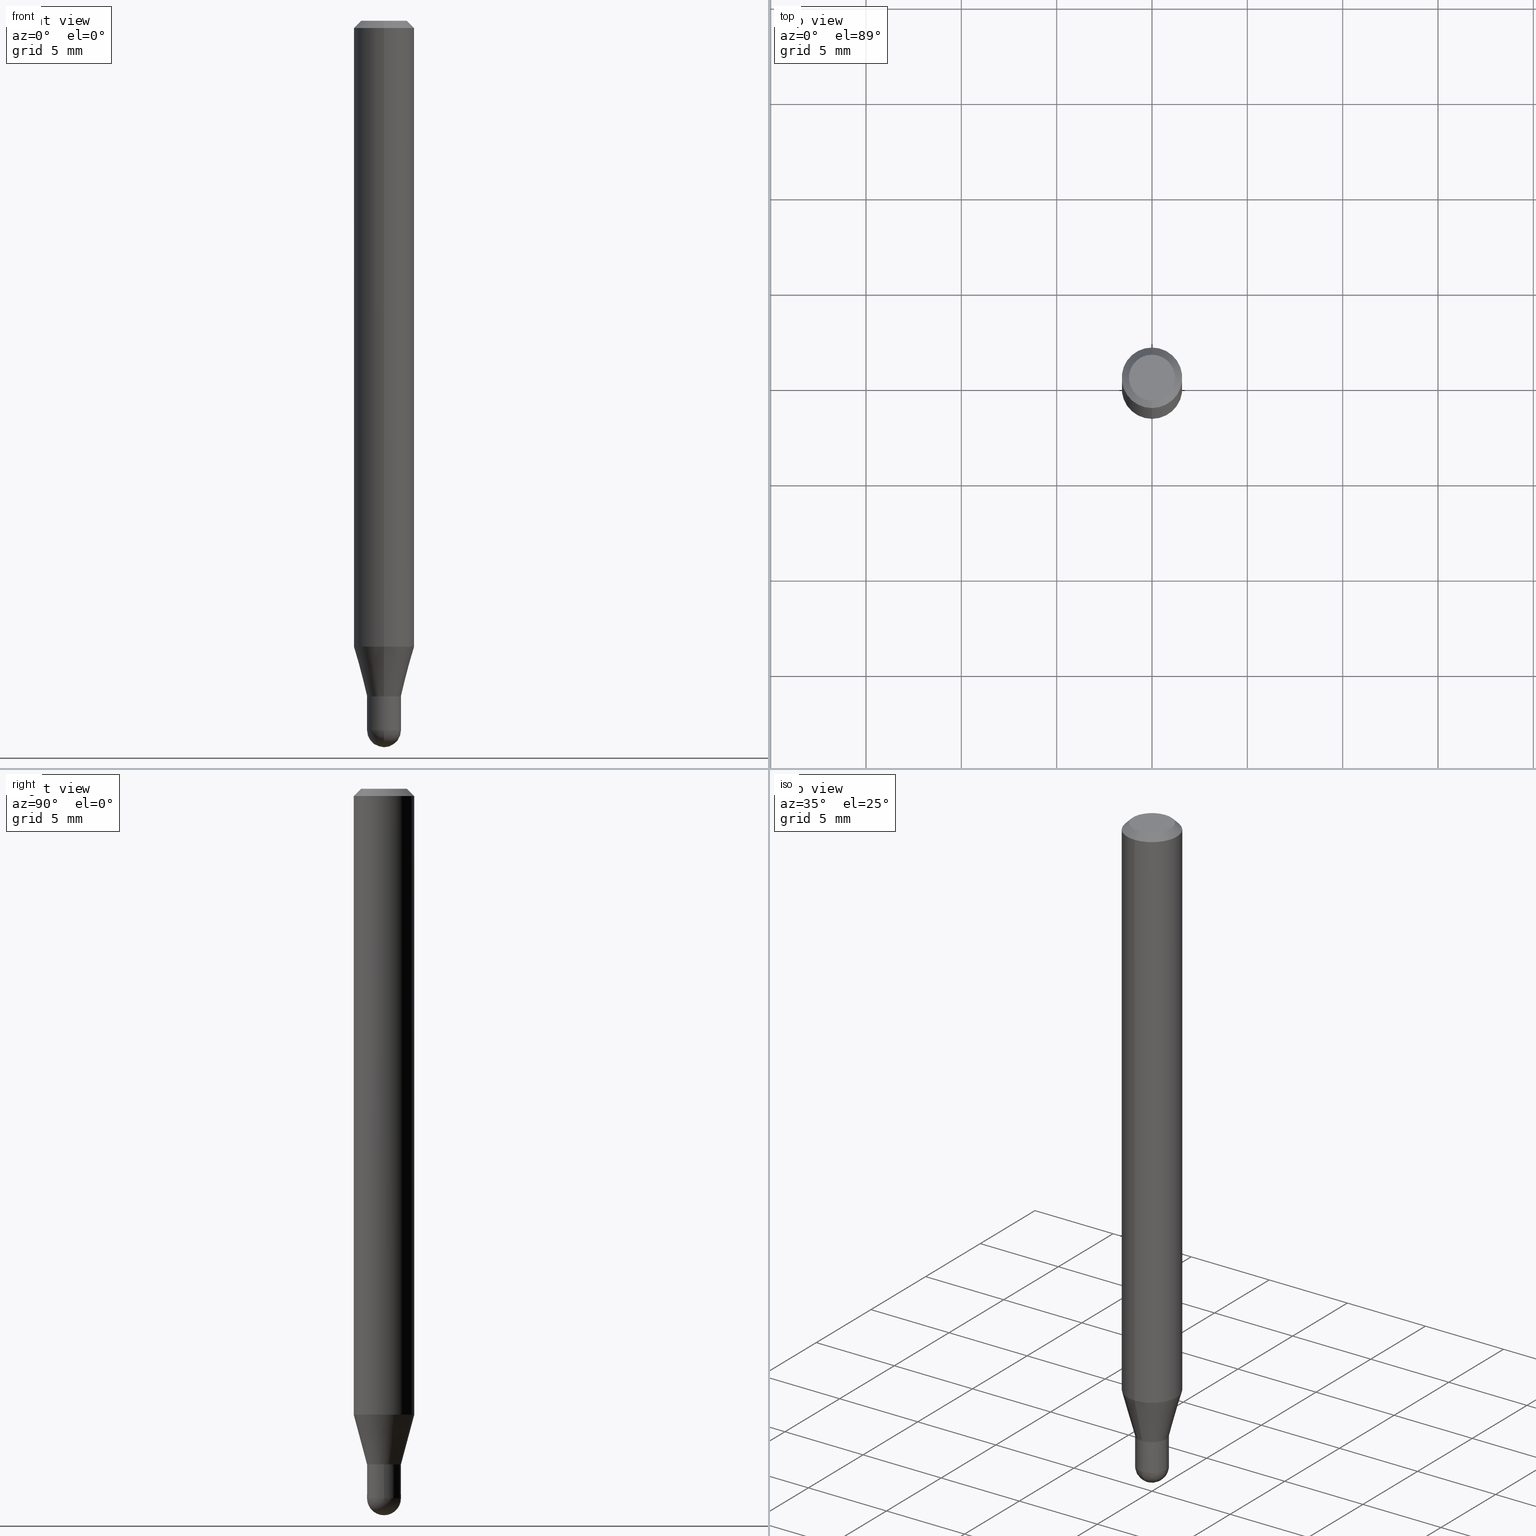
[diagram: canonical four-view strip — front | top / right | iso, engineering-drawing reading convention]
A machine part, canonical four-view strip (front | top / right | iso — engineering-drawing reading convention). The complete STEP part file that produces these views, byte-faithful:
ISO-10303-21;
HEADER;
FILE_DESCRIPTION (( 'STEP AP203' ),
    '1' );
FILE_NAME ('01420.STEP',
    '2024-03-07T20:38:20',
    ( '' ),
    ( '' ),
    'SwSTEP 2.0',
    'SolidWorks 2023',
    '' );
FILE_SCHEMA (( 'CONFIG_CONTROL_DESIGN' ));
ENDSEC;

DATA;
#1 = CIRCLE ( 'NONE', #357, 0.03499999999999992700 ) ;
#2 = VECTOR ( 'NONE', #176, 39.37007874015748143 ) ;
#3 = APPROVAL_DATE_TIME ( #406, #511 ) ;
#4 = CALENDAR_DATE ( 2024, 7, 3 ) ;
#5 = ORIENTED_EDGE ( 'NONE', *, *, #366, .F. ) ;
#6 = DIRECTION ( 'NONE',  ( -6.982962677686265922E-15, -1.000000000000000000, 0.000000000000000000 ) ) ;
#7 = DIRECTION ( 'NONE',  ( -6.982962677686265922E-15, -1.000000000000000000, 3.491503968680831010E-15 ) ) ;
#8 = PERSON_AND_ORGANIZATION ( #168, #453 ) ;
#9 = CC_DESIGN_PERSON_AND_ORGANIZATION_ASSIGNMENT ( #90, #83, ( #301 ) ) ;
#10 = APPROVAL_PERSON_ORGANIZATION ( #356, #50, #447 ) ;
#11 = EDGE_CURVE ( 'NONE', #457, #466, #471, .T. ) ;
#12 = DIRECTION ( 'NONE',  ( 4.937700262164548042E-15, 0.7071067811865451302, -0.7071067811865499042 ) ) ;
#13 = EDGE_CURVE ( 'NONE', #218, #249, #348, .T. ) ;
#14 = ORIENTED_EDGE ( 'NONE', *, *, #11, .F. ) ;
#15 = DIRECTION ( 'NONE',  ( -2.445453003853940643E-29, 3.491503968680831010E-15, 1.000000000000000000 ) ) ;
#16 = DIRECTION ( 'NONE',  ( -2.445453003853940643E-29, 3.491503968680831010E-15, 1.000000000000000000 ) ) ;
#17 = AXIS2_PLACEMENT_3D ( 'NONE', #149, #271, #438 ) ;
#18 = LOCAL_TIME ( 15, 38, 20.00000000000000000, #165 ) ;
#19 = EDGE_CURVE ( 'NONE', #359, #459, #31, .T. ) ;
#20 = CARTESIAN_POINT ( 'NONE',  ( -2.444036937189855026E-16, -0.03500000000000491607, -1.394500000000000073 ) ) ;
#21 = FACE_OUTER_BOUND ( 'NONE', #289, .T. ) ;
#22 = CC_DESIGN_DATE_AND_TIME_ASSIGNMENT ( #51, #478, ( #185 ) ) ;
#23 = CYLINDRICAL_SURFACE ( 'NONE', #290, 0.03499999999999992700 ) ;
#24 = CARTESIAN_POINT ( 'NONE',  ( -4.364351673553602629E-16, -0.06250000000000455191, -1.292368602791858612 ) ) ;
#25 = DIRECTION ( 'NONE',  ( 1.000000000000000000, -6.982962677686265922E-15, 4.876176775795936353E-29 ) ) ;
#26 = DIRECTION ( 'NONE',  ( -2.445468806185136597E-29, 3.491481338843145583E-15, 1.000000000000000000 ) ) ;
#27 = VERTEX_POINT ( 'NONE', #110 ) ;
#28 = AXIS2_PLACEMENT_3D ( 'NONE', #124, #117, #274 ) ;
#29 = EDGE_CURVE ( 'NONE', #491, #187, #269, .T. ) ;
#30 = CIRCLE ( 'NONE', #319, 0.06250000000000000000 ) ;
#31 = LINE ( 'NONE', #65, #118 ) ;
#32 = DIRECTION ( 'NONE',  ( 2.445453003853940643E-29, -3.491503968680831010E-15, -1.000000000000000000 ) ) ;
#33 = ADVANCED_FACE ( 'NONE', ( #21 ), #125, .T. ) ;
#34 = DIRECTION ( 'NONE',  ( -2.445453003853940643E-29, 3.491503968680831010E-15, 1.000000000000000000 ) ) ;
#35 = DIRECTION ( 'NONE',  ( 6.982962677686265922E-15, 1.000000000000000000, -3.483106191921935554E-15 ) ) ;
#36 = DIRECTION ( 'NONE',  ( -2.445453003853940363E-29, 3.491503968680831010E-15, 1.000000000000000000 ) ) ;
#37 = AXIS2_PLACEMENT_3D ( 'NONE', #115, #283, #52 ) ;
#38 = AXIS2_PLACEMENT_3D ( 'NONE', #396, #32, #35 ) ;
#39 = UNCERTAINTY_MEASURE_WITH_UNIT (LENGTH_MEASURE( 1.000000000000000082E-05 ), #401, 'distance_accuracy_value', 'NONE');
#40 = ADVANCED_FACE ( 'NONE', ( #216 ), #497, .T. ) ;
#41 = CARTESIAN_POINT ( 'NONE',  ( 3.411406940376247154E-29, -4.870648036309759893E-15, -1.395000000000000018 ) ) ;
#42 = EDGE_LOOP ( 'NONE', ( #449, #190, #368, #86 ) ) ;
#43 = CALENDAR_DATE ( 2024, 7, 3 ) ;
#44 = MANIFOLD_SOLID_BREP ( 'Body-Move/Copy2[1]', #397 ) ;
#45 = CYLINDRICAL_SURFACE ( 'NONE', #170, 0.03499999999999992700 ) ;
#46 = ADVANCED_FACE ( 'NONE', ( #303 ), #162, .T. ) ;
#47 = DIRECTION ( 'NONE',  ( -2.445453003853940643E-29, 3.491503968680831010E-15, 1.000000000000000000 ) ) ;
#48 = CIRCLE ( 'NONE', #195, 0.06250000000000000000 ) ;
#49 = CALENDAR_DATE ( 2024, 7, 3 ) ;
#50 = APPROVAL ( #92, 'UNSPECIFIED' ) ;
#51 = DATE_AND_TIME ( #49, #468 ) ;
#52 = DIRECTION ( 'NONE',  ( 7.105427357601000281E-15, 1.000000000000000000, 0.000000000000000000 ) ) ;
#53 = EDGE_LOOP ( 'NONE', ( #297, #451 ) ) ;
#54 = PERSON_AND_ORGANIZATION ( #168, #453 ) ;
#55 = AXIS2_PLACEMENT_3D ( 'NONE', #425, #101, #260 ) ;
#56 = ADVANCED_FACE ( 'NONE', ( #186 ), #314, .T. ) ;
#57 = VERTEX_POINT ( 'NONE', #230 ) ;
#58 = CC_DESIGN_APPROVAL ( #511, ( #178 ) ) ;
#59 = DIRECTION ( 'NONE',  ( -6.982962677686266711E-15, -1.000000000000000000, 3.491503968680831010E-15 ) ) ;
#60 = ORIENTED_EDGE ( 'NONE', *, *, #272, .F. ) ;
#61 = EDGE_LOOP ( 'NONE', ( #325, #370, #412, #111 ) ) ;
#62 = CARTESIAN_POINT ( 'NONE',  ( 2.486899575160686153E-16, 0.03499999999999505590, -1.395000000000000018 ) ) ;
#63 = CARTESIAN_POINT ( 'NONE',  ( 3.411406940376247154E-29, -4.870648036309759893E-15, -1.395000000000000018 ) ) ;
#64 = CIRCLE ( 'NONE', #376, 0.03500000000000000333 ) ;
#65 = CARTESIAN_POINT ( 'NONE',  ( -4.287811248607203282E-16, -0.06250000000000005551, -0.01499999999999979128 ) ) ;
#66 = CC_DESIGN_PERSON_AND_ORGANIZATION_ASSIGNMENT ( #199, #197, ( #80 ) ) ;
#67 = ORIENTED_EDGE ( 'NONE', *, *, #363, .F. ) ;
#68 = FACE_OUTER_BOUND ( 'NONE', #42, .T. ) ;
#69 = DIRECTION ( 'NONE',  ( -2.445453003853940643E-29, 3.491503968680831010E-15, 1.000000000000000000 ) ) ;
#70 = DIRECTION ( 'NONE',  ( -2.445453003853940643E-29, 3.491503968680831010E-15, 1.000000000000000000 ) ) ;
#71 = CARTESIAN_POINT ( 'NONE',  ( -4.364351673553912750E-16, -0.06250000000000005551, -0.01499999999999979128 ) ) ;
#72 = AXIS2_PLACEMENT_3D ( 'NONE', #437, #77, #6 ) ;
#73 = CIRCLE ( 'NONE', #17, 0.03500000000000000333 ) ;
#74 = EDGE_LOOP ( 'NONE', ( #236, #175, #223, #166 ) ) ;
#75 = DIRECTION ( 'NONE',  ( 6.982962677686265922E-15, 1.000000000000000000, -3.483106191921935554E-15 ) ) ;
#76 = DIRECTION ( 'NONE',  ( -2.445468806185136597E-29, 3.491481338843145583E-15, 1.000000000000000000 ) ) ;
#77 = DIRECTION ( 'NONE',  ( 1.000000000000000000, -6.982962677686265922E-15, 4.883557194083112901E-29 ) ) ;
#78 = DIRECTION ( 'NONE',  ( -6.982962677686265133E-15, -1.000000000000000000, 0.000000000000000000 ) ) ;
#79 = ADVANCED_FACE ( 'NONE', ( #352 ), #45, .F. ) ;
#80 = PRODUCT_DEFINITION_FORMATION_WITH_SPECIFIED_SOURCE ( 'ANY', '', #301, .NOT_KNOWN. ) ;
#81 = CARTESIAN_POINT ( 'NONE',  ( -2.409122123801420517E-16, -0.03450000000000487399, -1.395000000000000018 ) ) ;
#82 = DIRECTION ( 'NONE',  ( -6.982962677686265133E-15, -1.000000000000000000, 0.000000000000000000 ) ) ;
#83 = PERSON_AND_ORGANIZATION_ROLE ( 'design_owner' ) ;
#84 = ADVANCED_FACE ( 'NONE', ( #164 ), #509, .T. ) ;
#85 =( NAMED_UNIT ( * ) SI_UNIT ( $, .STERADIAN. ) SOLID_ANGLE_UNIT ( ) );
#86 = ORIENTED_EDGE ( 'NONE', *, *, #208, .F. ) ;
#87 = ADVANCED_FACE ( 'NONE', ( #364 ), #329, .T. ) ;
#88 = AXIS2_PLACEMENT_3D ( 'NONE', #322, #355, #7 ) ;
#89 = AXIS2_PLACEMENT_3D ( 'NONE', #460, #140, #300 ) ;
#90 = PERSON_AND_ORGANIZATION ( #168, #453 ) ;
#91 = CC_DESIGN_PERSON_AND_ORGANIZATION_ASSIGNMENT ( #167, #123, ( #80 ) ) ;
#92 = APPROVAL_STATUS ( 'not_yet_approved' ) ;
#93 = VERTEX_POINT ( 'NONE', #24 ) ;
#94 = AXIS2_PLACEMENT_3D ( 'NONE', #476, #429, #82 ) ;
#95 = VECTOR ( 'NONE', #469, 39.37007874015748854 ) ;
#96 = DIRECTION ( 'NONE',  ( -6.982962677686265922E-15, -1.000000000000000000, 4.370956789862821150E-15 ) ) ;
#97 = DIRECTION ( 'NONE',  ( -2.445453003853940643E-29, 3.491503968680831010E-15, 1.000000000000000000 ) ) ;
#98 = EDGE_LOOP ( 'NONE', ( #369, #183, #141, #5 ) ) ;
#99 = DIRECTION ( 'NONE',  ( -2.445453003853940643E-29, 3.491503968680831010E-15, 1.000000000000000000 ) ) ;
#100 = ADVANCED_FACE ( 'NONE', ( #129 ), #426, .T. ) ;
#101 = DIRECTION ( 'NONE',  ( -2.445468806185136597E-29, 3.491481338843145583E-15, 1.000000000000000000 ) ) ;
#102 = AXIS2_PLACEMENT_3D ( 'NONE', #226, #431, #108 ) ;
#103 = DIRECTION ( 'NONE',  ( 2.445453003853940643E-29, -3.491503968680831010E-15, -1.000000000000000000 ) ) ;
#104 = EDGE_CURVE ( 'NONE', #187, #466, #212, .T. ) ;
#105 = LINE ( 'NONE', #288, #204 ) ;
#106 = PRODUCT_RELATED_PRODUCT_CATEGORY ( 'detail', '', ( #301 ) ) ;
#107 = DIRECTION ( 'NONE',  ( -2.445468806185136597E-29, 3.491481338843145583E-15, 1.000000000000000000 ) ) ;
#108 = DIRECTION ( 'NONE',  ( -1.000000000000000000, 6.982962677686265922E-15, -4.876176775795935793E-29 ) ) ;
#109 = AXIS2_PLACEMENT_3D ( 'NONE', #456, #495, #248 ) ;
#110 = CARTESIAN_POINT ( 'NONE',  ( 0.03500000000000000333, -5.237222008264717388E-15, -1.464999999999999858 ) ) ;
#111 = ORIENTED_EDGE ( 'NONE', *, *, #462, .T. ) ;
#112 = FACE_OUTER_BOUND ( 'NONE', #242, .T. ) ;
#113 = EDGE_CURVE ( 'NONE', #160, #207, #257, .T. ) ;
#114 = DIRECTION ( 'NONE',  ( 5.024295867788190974E-15, 0.7071067811865681119, 0.7071067811865270336 ) ) ;
#115 = CARTESIAN_POINT ( 'NONE',  ( 3.579618719049097467E-29, -5.119306425202223514E-15, -1.465000000000000080 ) ) ;
#116 = CARTESIAN_POINT ( 'NONE',  ( 2.486899575160677278E-16, 0.03499999999999493794, -1.394500000000000073 ) ) ;
#117 = DIRECTION ( 'NONE',  ( 1.000000000000000000, -6.982962677686265922E-15, 4.883557194083112901E-29 ) ) ;
#118 = VECTOR ( 'NONE', #151, 39.37007874015748143 ) ;
#119 = LOCAL_TIME ( 15, 38, 20.00000000000000000, #276 ) ;
#120 = EDGE_CURVE ( 'NONE', #160, #259, #327, .T. ) ;
#121 = APPROVAL_ROLE ( '' ) ;
#122 = PERSON_AND_ORGANIZATION ( #168, #453 ) ;
#123 = PERSON_AND_ORGANIZATION_ROLE ( 'design_supplier' ) ;
#124 = CARTESIAN_POINT ( 'NONE',  ( 3.579618719049097467E-29, -5.119306425202223514E-15, -1.465000000000000080 ) ) ;
#125 = CONICAL_SURFACE ( 'NONE', #154, 0.06250000000000000000, 0.7853981633974483900 ) ;
#126 = AXIS2_PLACEMENT_3D ( 'NONE', #153, #307, #315 ) ;
#127 = LINE ( 'NONE', #209, #232 ) ;
#128 = CALENDAR_DATE ( 2024, 7, 3 ) ;
#129 = FACE_OUTER_BOUND ( 'NONE', #287, .T. ) ;
#130 = ADVANCED_FACE ( 'NONE', ( #481 ), #480, .T. ) ;
#131 = APPROVAL_DATE_TIME ( #161, #50 ) ;
#132 = ORIENTED_EDGE ( 'NONE', *, *, #13, .F. ) ;
#133 = DIRECTION ( 'NONE',  ( -6.982962677686265922E-15, -1.000000000000000000, 3.483106191921935554E-15 ) ) ;
#134 = ORIENTED_EDGE ( 'NONE', *, *, #256, .F. ) ;
#135 = CIRCLE ( 'NONE', #335, 0.04749999999999999362 ) ;
#136 = CARTESIAN_POINT ( 'NONE',  ( 3.411428984628265351E-29, -4.870616467686188228E-15, -1.395000000000000018 ) ) ;
#137 = EDGE_LOOP ( 'NONE', ( #418, #373, #324, #422 ) ) ;
#138 = VERTEX_POINT ( 'NONE', #378 ) ;
#139 = EDGE_CURVE ( 'NONE', #57, #138, #127, .T. ) ;
#140 = DIRECTION ( 'NONE',  ( -2.445453003853940643E-29, 3.491503968680831010E-15, 1.000000000000000000 ) ) ;
#141 = ORIENTED_EDGE ( 'NONE', *, *, #504, .F. ) ;
#142 = CARTESIAN_POINT ( 'NONE',  ( 2.469136006766686098E-16, 0.03449999999999513178, -1.395000000000000018 ) ) ;
#143 = CARTESIAN_POINT ( 'NONE',  ( 0.000000000000000000, 0.000000000000000000, 0.000000000000000000 ) ) ;
#144 = ORIENTED_EDGE ( 'NONE', *, *, #120, .T. ) ;
#145 = FACE_OUTER_BOUND ( 'NONE', #501, .T. ) ;
#146 = LOCAL_TIME ( 15, 38, 20.00000000000000000, #413 ) ;
#147 = FACE_OUTER_BOUND ( 'NONE', #347, .T. ) ;
#148 = EDGE_LOOP ( 'NONE', ( #285, #144, #382, #393 ) ) ;
#149 = CARTESIAN_POINT ( 'NONE',  ( 3.582611801061224486E-29, -5.115020161405207405E-15, -1.464999999999999858 ) ) ;
#150 = DIRECTION ( 'NONE',  ( -2.445453003853940643E-29, 3.491503968680831010E-15, 1.000000000000000000 ) ) ;
#151 = DIRECTION ( 'NONE',  ( -4.851104656540964275E-15, -0.7071067811865500152, -0.7071067811865450192 ) ) ;
#152 = DESIGN_CONTEXT ( 'detailed design', #243, 'design' ) ;
#153 = CARTESIAN_POINT ( 'NONE',  ( 0.000000000000000000, 0.000000000000000000, 0.000000000000000000 ) ) ;
#154 = AXIS2_PLACEMENT_3D ( 'NONE', #463, #103, #75 ) ;
#155 = CIRCLE ( 'NONE', #109, 0.03450000000000000289 ) ;
#156 = ORIENTED_EDGE ( 'NONE', *, *, #13, .T. ) ;
#157 = CARTESIAN_POINT ( 'NONE',  ( 3.411406940376247154E-29, -4.870648036309759893E-15, -1.395000000000000018 ) ) ;
#158 = ADVANCED_FACE ( 'NONE', ( #323 ), #317, .T. ) ;
#159 = PLANE ( 'NONE',  #102 ) ;
#160 = VERTEX_POINT ( 'NONE', #387 ) ;
#161 = DATE_AND_TIME ( #128, #205 ) ;
#162 = CONICAL_SURFACE ( 'NONE', #309, 0.03499999999999992700, 0.2617993877991572904 ) ;
#163 = ORIENTED_EDGE ( 'NONE', *, *, #504, .T. ) ;
#164 = FACE_OUTER_BOUND ( 'NONE', #332, .T. ) ;
#165 = COORDINATED_UNIVERSAL_TIME_OFFSET ( 5, 0, .BEHIND. ) ;
#166 = ORIENTED_EDGE ( 'NONE', *, *, #470, .F. ) ;
#167 = PERSON_AND_ORGANIZATION ( #168, #453 ) ;
#168 = PERSON ( 'UNSPECIFIED', 'UNSPECIFIED', 'UNSPECIFIED', ('UNSPECIFIED'), ('UNSPECIFIED'), ('UNSPECIFIED') ) ;
#169 = ORIENTED_EDGE ( 'NONE', *, *, #358, .F. ) ;
#170 = AXIS2_PLACEMENT_3D ( 'NONE', #405, #473, #512 ) ;
#171 = CIRCLE ( 'NONE', #275, 0.03500000000000000333 ) ;
#172 = CARTESIAN_POINT ( 'NONE',  ( 3.579618719049097467E-29, -5.119306425202223514E-15, -1.465000000000000080 ) ) ;
#173 = CARTESIAN_POINT ( 'NONE',  ( 3.316907271900976096E-16, 0.04749999999999999362, -1.702760608496099716E-16 ) ) ;
#174 = ADVANCED_FACE ( 'NONE', ( #182 ), #340, .F. ) ;
#175 = ORIENTED_EDGE ( 'NONE', *, *, #358, .T. ) ;
#176 = DIRECTION ( 'NONE',  ( -2.445468806185136877E-29, 3.491481338843145188E-15, 1.000000000000000000 ) ) ;
#177 = ORIENTED_EDGE ( 'NONE', *, *, #104, .T. ) ;
#178 = SECURITY_CLASSIFICATION ( '', '', #326 ) ;
#179 = CC_DESIGN_APPROVAL ( #50, ( #185 ) ) ;
#180 = CARTESIAN_POINT ( 'NONE',  ( -0.03500000000000000333, -4.744128357029662925E-15, -1.464999999999999858 ) ) ;
#181 = CARTESIAN_POINT ( 'NONE',  ( -2.444036937189840235E-16, -0.03500000000000519362, -1.464999999999999858 ) ) ;
#182 = FACE_OUTER_BOUND ( 'NONE', #240, .T. ) ;
#183 = ORIENTED_EDGE ( 'NONE', *, *, #113, .T. ) ;
#184 = DIRECTION ( 'NONE',  ( -6.982962677686265133E-15, -1.000000000000000000, 0.000000000000000000 ) ) ;
#185 = PRODUCT_DEFINITION ( 'UNKNOWN', '', #80, #152 ) ;
#186 = FACE_OUTER_BOUND ( 'NONE', #148, .T. ) ;
#187 = VERTEX_POINT ( 'NONE', #20 ) ;
#188 = AXIS2_PLACEMENT_3D ( 'NONE', #143, #261, #25 ) ;
#189 = DIRECTION ( 'NONE',  ( 1.000000000000000000, -6.982962677686276966E-15, 0.000000000000000000 ) ) ;
#190 = ORIENTED_EDGE ( 'NONE', *, *, #411, .T. ) ;
#191 = VECTOR ( 'NONE', #194, 39.37007874015748143 ) ;
#192 = FACE_OUTER_BOUND ( 'NONE', #53, .T. ) ;
#193 = DIRECTION ( 'NONE',  ( 1.000000000000000000, -6.982962677686276966E-15, 0.000000000000000000 ) ) ;
#194 = DIRECTION ( 'NONE',  ( -4.937700262164674260E-15, -0.7071067811865632269, 0.7071067811865319186 ) ) ;
#195 = AXIS2_PLACEMENT_3D ( 'NONE', #377, #211, #133 ) ;
#196 = DIRECTION ( 'NONE',  ( -6.982962677686265922E-15, -1.000000000000000000, 3.491503968680831010E-15 ) ) ;
#197 = PERSON_AND_ORGANIZATION_ROLE ( 'creator' ) ;
#198 = EDGE_CURVE ( 'NONE', #331, #344, #452, .T. ) ;
#199 = PERSON_AND_ORGANIZATION ( #168, #453 ) ;
#200 = ORIENTED_EDGE ( 'NONE', *, *, #198, .T. ) ;
#201 = CIRCLE ( 'NONE', #445, 0.03500000000000000333 ) ;
#202 = DATE_AND_TIME ( #282, #119 ) ;
#203 = APPROVAL_STATUS ( 'not_yet_approved' ) ;
#204 = VECTOR ( 'NONE', #430, 39.37007874015748143 ) ;
#205 = LOCAL_TIME ( 15, 38, 20.00000000000000000, #360 ) ;
#206 = ADVANCED_BREP_SHAPE_REPRESENTATION ( '01420', ( #44, #214, #432 ), #493 ) ;
#207 = VERTEX_POINT ( 'NONE', #464 ) ;
#208 = EDGE_CURVE ( 'NONE', #93, #459, #105, .T. ) ;
#209 = CARTESIAN_POINT ( 'NONE',  ( 4.364351673553919652E-16, 0.06249999999999995143, -0.01500000000000022669 ) ) ;
#210 = CARTESIAN_POINT ( 'NONE',  ( 0.03500000000000000333, -2.444036937190193250E-16, 1.706661871528577808E-30 ) ) ;
#211 = DIRECTION ( 'NONE',  ( -2.445453003853940643E-29, 3.491503968680831010E-15, 1.000000000000000000 ) ) ;
#212 = CIRCLE ( 'NONE', #492, 0.03499999999999992700 ) ;
#213 = CARTESIAN_POINT ( 'NONE',  ( -3.773273898774340269E-16, -0.04749999999999999362, 1.569871938377984195E-16 ) ) ;
#214 = MANIFOLD_SOLID_BREP ( 'Body-Move/Copy2[2]', #334 ) ;
#215 = CARTESIAN_POINT ( 'NONE',  ( 3.410184213874320252E-29, -4.868902284325419280E-15, -1.394500000000000073 ) ) ;
#216 = FACE_OUTER_BOUND ( 'NONE', #294, .T. ) ;
#217 = APPLICATION_CONTEXT ( 'configuration controlled 3d designs of mechanical parts and assemblies' ) ;
#218 = VERTEX_POINT ( 'NONE', #180 ) ;
#219 = ORIENTED_EDGE ( 'NONE', *, *, #198, .F. ) ;
#220 = ADVANCED_FACE ( 'NONE', ( #145 ), #23, .F. ) ;
#221 = CYLINDRICAL_SURFACE ( 'NONE', #126, 0.06250000000000000000 ) ;
#222 = DIRECTION ( 'NONE',  ( -6.982962677686265133E-15, -1.000000000000000000, 0.000000000000000000 ) ) ;
#223 = ORIENTED_EDGE ( 'NONE', *, *, #284, .F. ) ;
#224 = CARTESIAN_POINT ( 'NONE',  ( 0.000000000000000000, 0.000000000000000000, 0.000000000000000000 ) ) ;
#225 = AXIS2_PLACEMENT_3D ( 'NONE', #172, #280, #241 ) ;
#226 = CARTESIAN_POINT ( 'NONE',  ( 2.444036937190534432E-16, 0.03499999999999513223, -1.395000000000000018 ) ) ;
#227 = AXIS2_PLACEMENT_3D ( 'NONE', #63, #97, #184 ) ;
#228 = CARTESIAN_POINT ( 'NONE',  ( 2.486899575160344971E-16, 0.03499999999999992700, -1.222026389038288250E-16 ) ) ;
#229 = DIRECTION ( 'NONE',  ( -2.445453003853940643E-29, 3.491503968680831010E-15, 1.000000000000000000 ) ) ;
#230 = CARTESIAN_POINT ( 'NONE',  ( 3.840629472727447874E-16, 0.04749999999999999362, -1.747056831868805136E-16 ) ) ;
#231 = CARTESIAN_POINT ( 'NONE',  ( -2.444036937189846644E-16, -0.03500000000000479811, -1.395000000000000018 ) ) ;
#232 = VECTOR ( 'NONE', #12, 39.37007874015748143 ) ;
#233 = CIRCLE ( 'NONE', #227, 0.03499999999999992700 ) ;
#234 = DIRECTION ( 'NONE',  ( 1.000000000000000000, -6.982962677686276966E-15, 0.000000000000000000 ) ) ;
#235 = APPROVAL ( #362, 'UNSPECIFIED' ) ;
#236 = ORIENTED_EDGE ( 'NONE', *, *, #272, .T. ) ;
#237 = APPROVAL_ROLE ( '' ) ;
#238 = APPROVAL_DATE_TIME ( #354, #235 ) ;
#239 = CC_DESIGN_SECURITY_CLASSIFICATION ( #178, ( #80 ) ) ;
#240 = EDGE_LOOP ( 'NONE', ( #308, #278 ) ) ;
#241 = DIRECTION ( 'NONE',  ( -6.982962677686265922E-15, -1.000000000000000000, 0.000000000000000000 ) ) ;
#242 = EDGE_LOOP ( 'NONE', ( #467, #200, #330, #134 ) ) ;
#243 = APPLICATION_CONTEXT ( 'configuration controlled 3d designs of mechanical parts and assemblies' ) ;
#244 = COORDINATED_UNIVERSAL_TIME_OFFSET ( 5, 0, .BEHIND. ) ;
#245 = EDGE_LOOP ( 'NONE', ( #304, #156, #379, #434, #163 ) ) ;
#246 = ORIENTED_EDGE ( 'NONE', *, *, #208, .T. ) ;
#247 = CIRCLE ( 'NONE', #477, 0.03499999999999992700 ) ;
#248 = DIRECTION ( 'NONE',  ( -6.982962677686265133E-15, -1.000000000000000000, 0.000000000000000000 ) ) ;
#249 = VERTEX_POINT ( 'NONE', #295 ) ;
#250 = EDGE_LOOP ( 'NONE', ( #454, #361, #424, #395 ) ) ;
#251 = CARTESIAN_POINT ( 'NONE',  ( -2.409122123801420517E-16, -0.03450000000000487399, -1.395000000000000018 ) ) ;
#252 = ORIENTED_EDGE ( 'NONE', *, *, #139, .F. ) ;
#253 = ORIENTED_EDGE ( 'NONE', *, *, #313, .T. ) ;
#254 = LINE ( 'NONE', #210, #2 ) ;
#255 = DIRECTION ( 'NONE',  ( -6.982962677686265133E-15, -1.000000000000000000, 0.000000000000000000 ) ) ;
#256 = EDGE_CURVE ( 'NONE', #466, #187, #1, .T. ) ;
#257 = CIRCLE ( 'NONE', #37, 0.03500000000000015599 ) ;
#258 = AXIS2_PLACEMENT_3D ( 'NONE', #488, #15, #59 ) ;
#259 = VERTEX_POINT ( 'NONE', #181 ) ;
#260 = DIRECTION ( 'NONE',  ( 1.000000000000000000, -6.982962677686276966E-15, 0.000000000000000000 ) ) ;
#261 = DIRECTION ( 'NONE',  ( -2.445468806185136597E-29, 3.491481338843145583E-15, 1.000000000000000000 ) ) ;
#262 = EDGE_CURVE ( 'NONE', #249, #296, #171, .T. ) ;
#263 = ORIENTED_EDGE ( 'NONE', *, *, #366, .T. ) ;
#264 = CARTESIAN_POINT ( 'NONE',  ( 3.411406940376247154E-29, -4.870648036309759893E-15, -1.395000000000000018 ) ) ;
#265 = CARTESIAN_POINT ( 'NONE',  ( 3.582611801061224486E-29, -5.115020161405207405E-15, -1.464999999999999858 ) ) ;
#266 = EDGE_CURVE ( 'NONE', #344, #331, #155, .T. ) ;
#267 = CIRCLE ( 'NONE', #258, 0.04749999999999999362 ) ;
#268 = APPROVAL_PERSON_ORGANIZATION ( #443, #511, #237 ) ;
#269 = LINE ( 'NONE', #384, #416 ) ;
#270 = DIRECTION ( 'NONE',  ( -6.982962677686265133E-15, -1.000000000000000000, 0.000000000000000000 ) ) ;
#271 = DIRECTION ( 'NONE',  ( -2.445468806185136597E-29, 3.491481338843145583E-15, 1.000000000000000000 ) ) ;
#272 = EDGE_CURVE ( 'NONE', #491, #457, #233, .T. ) ;
#273 = CARTESIAN_POINT ( 'NONE',  ( -2.444036937189846644E-16, -0.03500000000000479811, -1.395000000000000018 ) ) ;
#274 = DIRECTION ( 'NONE',  ( -6.982962677686265922E-15, -1.000000000000000000, 0.000000000000000000 ) ) ;
#275 = AXIS2_PLACEMENT_3D ( 'NONE', #136, #26, #189 ) ;
#276 = COORDINATED_UNIVERSAL_TIME_OFFSET ( 5, 0, .BEHIND. ) ;
#277 = DATE_TIME_ROLE ( 'classification_date' ) ;
#278 = ORIENTED_EDGE ( 'NONE', *, *, #341, .T. ) ;
#279 = APPLICATION_PROTOCOL_DEFINITION ( 'international standard', 'config_control_design', 1994, #243 ) ;
#280 = DIRECTION ( 'NONE',  ( -1.000000000000000000, 6.982962677686265922E-15, -4.883557194083112340E-29 ) ) ;
#281 = AXIS2_PLACEMENT_3D ( 'NONE', #157, #312, #270 ) ;
#282 = CALENDAR_DATE ( 2024, 7, 3 ) ;
#283 = DIRECTION ( 'NONE',  ( 1.000000000000000000, -7.105427357601001070E-15, 4.926315508542082329E-29 ) ) ;
#284 = EDGE_CURVE ( 'NONE', #93, #298, #461, .T. ) ;
#285 = ORIENTED_EDGE ( 'NONE', *, *, #113, .F. ) ;
#286 = EDGE_CURVE ( 'NONE', #57, #359, #267, .T. ) ;
#287 = EDGE_LOOP ( 'NONE', ( #169, #318, #415, #67 ) ) ;
#288 = CARTESIAN_POINT ( 'NONE',  ( -4.364351673553916201E-16, -0.06250000000000000000, 2.182189980425519382E-16 ) ) ;
#289 = EDGE_LOOP ( 'NONE', ( #299, #338, #253, #252 ) ) ;
#290 = AXIS2_PLACEMENT_3D ( 'NONE', #224, #99, #337 ) ;
#291 = AXIS2_PLACEMENT_3D ( 'NONE', #265, #107, #193 ) ;
#292 = ORIENTED_EDGE ( 'NONE', *, *, #363, .T. ) ;
#293 = DIRECTION ( 'NONE',  ( 1.000000000000000000, -6.982962677686265922E-15, 4.876176775795936353E-29 ) ) ;
#294 = EDGE_LOOP ( 'NONE', ( #132, #388, #263, #420, #489 ) ) ;
#295 = CARTESIAN_POINT ( 'NONE',  ( -0.03500000000000000333, -4.744128357029662925E-15, -1.395000000000000018 ) ) ;
#296 = VERTEX_POINT ( 'NONE', #458 ) ;
#297 = ORIENTED_EDGE ( 'NONE', *, *, #508, .T. ) ;
#298 = VERTEX_POINT ( 'NONE', #383 ) ;
#299 = ORIENTED_EDGE ( 'NONE', *, *, #341, .F. ) ;
#300 = DIRECTION ( 'NONE',  ( -6.982962677686265922E-15, -1.000000000000000000, 4.370956789862821150E-15 ) ) ;
#301 = PRODUCT ( '01420', '01420', '', ( #321 ) ) ;
#302 = DIRECTION ( 'NONE',  ( -6.982962677686266711E-15, -1.000000000000000000, 3.491503968680831010E-15 ) ) ;
#303 = FACE_OUTER_BOUND ( 'NONE', #74, .T. ) ;
#304 = ORIENTED_EDGE ( 'NONE', *, *, #403, .T. ) ;
#305 = DIRECTION ( 'NONE',  ( -2.445453003853940643E-29, 3.491503968680831010E-15, 1.000000000000000000 ) ) ;
#306 = ORIENTED_EDGE ( 'NONE', *, *, #29, .T. ) ;
#307 = DIRECTION ( 'NONE',  ( -2.445453003853940643E-29, 3.491503968680831010E-15, 1.000000000000000000 ) ) ;
#308 = ORIENTED_EDGE ( 'NONE', *, *, #286, .T. ) ;
#309 = AXIS2_PLACEMENT_3D ( 'NONE', #428, #69, #222 ) ;
#310 = CONICAL_SURFACE ( 'NONE', #281, 0.03450000000000000289, 0.7853981633974739252 ) ;
#311 = LINE ( 'NONE', #81, #191 ) ;
#312 = DIRECTION ( 'NONE',  ( -2.445453003853940643E-29, 3.491503968680831010E-15, 1.000000000000000000 ) ) ;
#313 = EDGE_CURVE ( 'NONE', #459, #138, #48, .T. ) ;
#314 = SPHERICAL_SURFACE ( 'NONE', #72, 0.03500000000000015599 ) ;
#315 = DIRECTION ( 'NONE',  ( -6.982962677686265922E-15, -1.000000000000000000, 3.491503968680831010E-15 ) ) ;
#316 = CARTESIAN_POINT ( 'NONE',  ( 0.000000000000000000, 0.000000000000000000, 0.000000000000000000 ) ) ;
#317 = CONICAL_SURFACE ( 'NONE', #94, 0.03450000000000000289, 0.7853981633974739252 ) ;
#318 = ORIENTED_EDGE ( 'NONE', *, *, #351, .T. ) ;
#319 = AXIS2_PLACEMENT_3D ( 'NONE', #346, #505, #345 ) ;
#320 = EDGE_CURVE ( 'NONE', #27, #296, #254, .T. ) ;
#321 = MECHANICAL_CONTEXT ( 'NONE', #217, 'mechanical' ) ;
#322 = CARTESIAN_POINT ( 'NONE',  ( 0.000000000000000000, 0.000000000000000000, 0.000000000000000000 ) ) ;
#323 = FACE_OUTER_BOUND ( 'NONE', #250, .T. ) ;
#324 = ORIENTED_EDGE ( 'NONE', *, *, #256, .T. ) ;
#325 = ORIENTED_EDGE ( 'NONE', *, *, #19, .F. ) ;
#326 = SECURITY_CLASSIFICATION_LEVEL ( 'unclassified' ) ;
#327 = CIRCLE ( 'NONE', #225, 0.03500000000000015599 ) ;
#328 = CONICAL_SURFACE ( 'NONE', #38, 0.06250000000000000000, 0.7853981633974483900 ) ;
#329 = CYLINDRICAL_SURFACE ( 'NONE', #444, 0.03500000000000000333 ) ;
#330 = ORIENTED_EDGE ( 'NONE', *, *, #398, .T. ) ;
#331 = VERTEX_POINT ( 'NONE', #142 ) ;
#332 = EDGE_LOOP ( 'NONE', ( #381, #292, #246, #404 ) ) ;
#333 = CARTESIAN_POINT ( 'NONE',  ( 2.166486650123342683E-46, -3.093208794067458567E-32, -8.859244674541047048E-18 ) ) ;
#334 = CLOSED_SHELL ( 'NONE', ( #79, #158, #33, #374, #46, #100, #84, #423, #174, #386, #475, #220 ) ) ;
#335 = AXIS2_PLACEMENT_3D ( 'NONE', #333, #339, #302 ) ;
#336 = DIRECTION ( 'NONE',  ( -2.445453003853940643E-29, 3.491503968680831010E-15, 1.000000000000000000 ) ) ;
#337 = DIRECTION ( 'NONE',  ( -6.982962677686265133E-15, -1.000000000000000000, 3.491503968680831010E-15 ) ) ;
#338 = ORIENTED_EDGE ( 'NONE', *, *, #19, .T. ) ;
#339 = DIRECTION ( 'NONE',  ( -2.445453003853940643E-29, 3.491503968680831010E-15, 1.000000000000000000 ) ) ;
#340 = PLANE ( 'NONE',  #389 ) ;
#341 = EDGE_CURVE ( 'NONE', #359, #57, #135, .T. ) ;
#342 = CARTESIAN_POINT ( 'NONE',  ( -0.03500000000000000333, 2.486899575160350887E-16, -1.721627281589217108E-30 ) ) ;
#343 = DIRECTION ( 'NONE',  ( -2.445453003853940643E-29, 3.491503968680831010E-15, 1.000000000000000000 ) ) ;
#344 = VERTEX_POINT ( 'NONE', #251 ) ;
#345 = DIRECTION ( 'NONE',  ( -6.982962677686265922E-15, -1.000000000000000000, 3.483106191921935554E-15 ) ) ;
#346 = CARTESIAN_POINT ( 'NONE',  ( 3.668179505780913400E-31, -5.237255953021249622E-17, -0.01500000000000000812 ) ) ;
#347 = EDGE_LOOP ( 'NONE', ( #483, #219 ) ) ;
#348 = LINE ( 'NONE', #342, #408 ) ;
#349 = CIRCLE ( 'NONE', #291, 0.03500000000000000333 ) ;
#350 = CARTESIAN_POINT ( 'NONE',  ( 3.582611801061224486E-29, -5.115020161405207405E-15, -1.464999999999999858 ) ) ;
#351 = EDGE_CURVE ( 'NONE', #457, #491, #247, .T. ) ;
#352 = FACE_OUTER_BOUND ( 'NONE', #137, .T. ) ;
#353 = LENGTH_MEASURE_WITH_UNIT ( LENGTH_MEASURE( 0.02539999999999999897 ), #400 );
#354 = DATE_AND_TIME ( #43, #146 ) ;
#355 = DIRECTION ( 'NONE',  ( -2.445453003853940643E-29, 3.491503968680831010E-15, 1.000000000000000000 ) ) ;
#356 = PERSON_AND_ORGANIZATION ( #168, #453 ) ;
#357 = AXIS2_PLACEMENT_3D ( 'NONE', #490, #70, #385 ) ;
#358 = EDGE_CURVE ( 'NONE', #457, #298, #427, .T. ) ;
#359 = VERTEX_POINT ( 'NONE', #213 ) ;
#360 = COORDINATED_UNIVERSAL_TIME_OFFSET ( 5, 0, .BEHIND. ) ;
#361 = ORIENTED_EDGE ( 'NONE', *, *, #496, .T. ) ;
#362 = APPROVAL_STATUS ( 'not_yet_approved' ) ;
#363 = EDGE_CURVE ( 'NONE', #298, #93, #506, .T. ) ;
#364 = FACE_OUTER_BOUND ( 'NONE', #245, .T. ) ;
#365 = PERSON_AND_ORGANIZATION_ROLE ( 'classification_officer' ) ;
#366 = EDGE_CURVE ( 'NONE', #259, #27, #486, .T. ) ;
#367 = APPROVAL_PERSON_ORGANIZATION ( #122, #235, #121 ) ;
#368 = ORIENTED_EDGE ( 'NONE', *, *, #313, .F. ) ;
#369 = ORIENTED_EDGE ( 'NONE', *, *, #120, .F. ) ;
#370 = ORIENTED_EDGE ( 'NONE', *, *, #286, .F. ) ;
#371 = PRODUCT_DEFINITION_SHAPE ( 'NONE', 'NONE',  #185 ) ;
#372 = DIRECTION ( 'NONE',  ( -6.982962677686265133E-15, -1.000000000000000000, 0.000000000000000000 ) ) ;
#373 = ORIENTED_EDGE ( 'NONE', *, *, #11, .T. ) ;
#374 = ADVANCED_FACE ( 'NONE', ( #68 ), #221, .T. ) ;
#375 = DIRECTION ( 'NONE',  ( 1.839019923739648436E-15, 0.2588190451025317307, 0.9659258262890653146 ) ) ;
#376 = AXIS2_PLACEMENT_3D ( 'NONE', #350, #76, #435 ) ;
#377 = CARTESIAN_POINT ( 'NONE',  ( 3.668179505780913400E-31, -5.237255953021249622E-17, -0.01500000000000000812 ) ) ;
#378 = CARTESIAN_POINT ( 'NONE',  ( 4.440892098500943678E-16, 0.06249999999999995143, -0.01500000000000022669 ) ) ;
#379 = ORIENTED_EDGE ( 'NONE', *, *, #508, .F. ) ;
#380 = DIMENSIONAL_EXPONENTS ( 1.000000000000000000, 0.000000000000000000, 0.000000000000000000, 0.000000000000000000, 0.000000000000000000, 0.000000000000000000, 0.000000000000000000 ) ;
#381 = ORIENTED_EDGE ( 'NONE', *, *, #411, .F. ) ;
#382 = ORIENTED_EDGE ( 'NONE', *, *, #446, .F. ) ;
#383 = CARTESIAN_POINT ( 'NONE',  ( 4.440892098500939734E-16, 0.06249999999999544809, -1.292368602791859056 ) ) ;
#384 = CARTESIAN_POINT ( 'NONE',  ( -2.444036937190187827E-16, -0.03499999999999992700, 1.222026389038288250E-16 ) ) ;
#385 = DIRECTION ( 'NONE',  ( -6.982962677686265133E-15, -1.000000000000000000, 0.000000000000000000 ) ) ;
#386 = ADVANCED_FACE ( 'NONE', ( #147 ), #500, .F. ) ;
#387 = CARTESIAN_POINT ( 'NONE',  ( 3.663713586259513245E-29, -5.243651403960242340E-15, -1.500000000000000222 ) ) ;
#388 = ORIENTED_EDGE ( 'NONE', *, *, #446, .T. ) ;
#389 = AXIS2_PLACEMENT_3D ( 'NONE', #173, #419, #498 ) ;
#390 = VECTOR ( 'NONE', #114, 39.37007874015748143 ) ;
#391 = CARTESIAN_POINT ( 'NONE',  ( 4.440892098500625669E-16, 0.06250000000000000000, -2.182189980425519382E-16 ) ) ;
#392 = CARTESIAN_POINT ( 'NONE',  ( 3.411406940376247154E-29, -4.870648036309759893E-15, -1.395000000000000018 ) ) ;
#393 = ORIENTED_EDGE ( 'NONE', *, *, #403, .F. ) ;
#394 = LINE ( 'NONE', #391, #499 ) ;
#395 = ORIENTED_EDGE ( 'NONE', *, *, #398, .F. ) ;
#396 = CARTESIAN_POINT ( 'NONE',  ( 3.668179505780913400E-31, -5.237255953021249622E-17, -0.01500000000000000812 ) ) ;
#397 = CLOSED_SHELL ( 'NONE', ( #87, #130, #440, #56, #40 ) ) ;
#398 = EDGE_CURVE ( 'NONE', #344, #187, #311, .T. ) ;
#399 = AXIS2_PLACEMENT_3D ( 'NONE', #450, #16, #96 ) ;
#400 =( LENGTH_UNIT ( ) NAMED_UNIT ( * ) SI_UNIT ( $, .METRE. ) );
#401 =( CONVERSION_BASED_UNIT ( 'INCH', #353 ) LENGTH_UNIT ( ) NAMED_UNIT ( #380 ) );
#402 = DIRECTION ( 'NONE',  ( -2.445468806185136597E-29, 3.491481338843145583E-15, 1.000000000000000000 ) ) ;
#403 = EDGE_CURVE ( 'NONE', #207, #218, #64, .T. ) ;
#404 = ORIENTED_EDGE ( 'NONE', *, *, #462, .F. ) ;
#405 = CARTESIAN_POINT ( 'NONE',  ( 0.000000000000000000, 0.000000000000000000, 0.000000000000000000 ) ) ;
#406 = DATE_AND_TIME ( #4, #18 ) ;
#407 = VECTOR ( 'NONE', #34, 39.37007874015748143 ) ;
#408 = VECTOR ( 'NONE', #503, 39.37007874015748143 ) ;
#409 = VECTOR ( 'NONE', #375, 39.37007874015748143 ) ;
#410 = DIRECTION ( 'NONE',  ( 0.000000000000000000, 0.000000000000000000, 1.000000000000000000 ) ) ;
#411 = EDGE_CURVE ( 'NONE', #298, #138, #394, .T. ) ;
#412 = ORIENTED_EDGE ( 'NONE', *, *, #139, .T. ) ;
#413 = COORDINATED_UNIVERSAL_TIME_OFFSET ( 5, 0, .BEHIND. ) ;
#414 = SHAPE_DEFINITION_REPRESENTATION ( #371, #206 ) ;
#415 = ORIENTED_EDGE ( 'NONE', *, *, #470, .T. ) ;
#416 = VECTOR ( 'NONE', #343, 39.37007874015748143 ) ;
#417 = AXIS2_PLACEMENT_3D ( 'NONE', #41, #36, #196 ) ;
#418 = ORIENTED_EDGE ( 'NONE', *, *, #351, .F. ) ;
#419 = DIRECTION ( 'NONE',  ( 2.445453003853940363E-29, -3.491503968680831010E-15, -1.000000000000000000 ) ) ;
#420 = ORIENTED_EDGE ( 'NONE', *, *, #320, .T. ) ;
#421 = DIRECTION ( 'NONE',  ( -6.982962677686265133E-15, -1.000000000000000000, 0.000000000000000000 ) ) ;
#422 = ORIENTED_EDGE ( 'NONE', *, *, #29, .F. ) ;
#423 = ADVANCED_FACE ( 'NONE', ( #465 ), #328, .T. ) ;
#424 = ORIENTED_EDGE ( 'NONE', *, *, #104, .F. ) ;
#425 = CARTESIAN_POINT ( 'NONE',  ( 3.582611801061224486E-29, -5.115020161405207405E-15, -1.464999999999999858 ) ) ;
#426 = CONICAL_SURFACE ( 'NONE', #485, 0.03499999999999992700, 0.2617993877991572904 ) ;
#427 = LINE ( 'NONE', #62, #409 ) ;
#428 = CARTESIAN_POINT ( 'NONE',  ( 3.411406940376247154E-29, -4.870648036309759893E-15, -1.395000000000000018 ) ) ;
#429 = DIRECTION ( 'NONE',  ( -2.445453003853940643E-29, 3.491503968680831010E-15, 1.000000000000000000 ) ) ;
#430 = DIRECTION ( 'NONE',  ( -2.445453003853940643E-29, 3.491503968680831010E-15, 1.000000000000000000 ) ) ;
#431 = DIRECTION ( 'NONE',  ( 2.438088387897960049E-29, -3.491481338843145188E-15, -1.000000000000000000 ) ) ;
#432 = AXIS2_PLACEMENT_3D ( 'NONE', #316, #410, #479 ) ;
#433 =( NAMED_UNIT ( * ) PLANE_ANGLE_UNIT ( ) SI_UNIT ( $, .RADIAN. ) );
#434 = ORIENTED_EDGE ( 'NONE', *, *, #320, .F. ) ;
#435 = DIRECTION ( 'NONE',  ( 1.000000000000000000, -6.982962677686276966E-15, 0.000000000000000000 ) ) ;
#436 = CC_DESIGN_DATE_AND_TIME_ASSIGNMENT ( #202, #277, ( #178 ) ) ;
#437 = CARTESIAN_POINT ( 'NONE',  ( 3.579618719049097467E-29, -5.119306425202223514E-15, -1.465000000000000080 ) ) ;
#438 = DIRECTION ( 'NONE',  ( 1.000000000000000000, -6.982962677686276966E-15, 0.000000000000000000 ) ) ;
#439 = AXIS2_PLACEMENT_3D ( 'NONE', #264, #305, #372 ) ;
#440 = ADVANCED_FACE ( 'NONE', ( #192 ), #159, .F. ) ;
#441 = CC_DESIGN_APPROVAL ( #235, ( #80 ) ) ;
#442 = DIRECTION ( 'NONE',  ( -2.445468806185136597E-29, 3.491481338843145583E-15, 1.000000000000000000 ) ) ;
#443 = PERSON_AND_ORGANIZATION ( #168, #453 ) ;
#444 = AXIS2_PLACEMENT_3D ( 'NONE', #487, #402, #293 ) ;
#445 = AXIS2_PLACEMENT_3D ( 'NONE', #510, #442, #234 ) ;
#446 = EDGE_CURVE ( 'NONE', #218, #259, #349, .T. ) ;
#447 = APPROVAL_ROLE ( '' ) ;
#448 = CC_DESIGN_PERSON_AND_ORGANIZATION_ASSIGNMENT ( #54, #365, ( #178 ) ) ;
#449 = ORIENTED_EDGE ( 'NONE', *, *, #284, .T. ) ;
#450 = CARTESIAN_POINT ( 'NONE',  ( 3.160426681783871860E-29, -4.512310105646275216E-15, -1.292368602791858834 ) ) ;
#451 = ORIENTED_EDGE ( 'NONE', *, *, #262, .T. ) ;
#452 = CIRCLE ( 'NONE', #439, 0.03450000000000000289 ) ;
#453 = ORGANIZATION ( 'UNSPECIFIED', 'UNSPECIFIED', '' ) ;
#454 = ORIENTED_EDGE ( 'NONE', *, *, #266, .T. ) ;
#455 = CC_DESIGN_PERSON_AND_ORGANIZATION_ASSIGNMENT ( #8, #484, ( #185 ) ) ;
#456 = CARTESIAN_POINT ( 'NONE',  ( 3.411406940376247154E-29, -4.870648036309759893E-15, -1.395000000000000018 ) ) ;
#457 = VERTEX_POINT ( 'NONE', #474 ) ;
#458 = CARTESIAN_POINT ( 'NONE',  ( 0.03500000000000000333, -5.115020161405208194E-15, -1.395000000000000018 ) ) ;
#459 = VERTEX_POINT ( 'NONE', #71 ) ;
#460 = CARTESIAN_POINT ( 'NONE',  ( 3.160426681783871860E-29, -4.512310105646275216E-15, -1.292368602791858834 ) ) ;
#461 = CIRCLE ( 'NONE', #399, 0.06250000000000000000 ) ;
#462 = EDGE_CURVE ( 'NONE', #138, #459, #30, .T. ) ;
#463 = CARTESIAN_POINT ( 'NONE',  ( 3.668179505780913400E-31, -5.237255953021249622E-17, -0.01500000000000000812 ) ) ;
#464 = CARTESIAN_POINT ( 'NONE',  ( 2.486899575160714256E-16, 0.03499999999999496569, -1.464999999999999858 ) ) ;
#465 = FACE_OUTER_BOUND ( 'NONE', #61, .T. ) ;
#466 = VERTEX_POINT ( 'NONE', #116 ) ;
#467 = ORIENTED_EDGE ( 'NONE', *, *, #496, .F. ) ;
#468 = LOCAL_TIME ( 15, 38, 20.00000000000000000, #244 ) ;
#469 = DIRECTION ( 'NONE',  ( -1.807323732225377471E-15, -0.2588190451025249583, 0.9659258262890670910 ) ) ;
#470 = EDGE_CURVE ( 'NONE', #491, #93, #507, .T. ) ;
#471 = LINE ( 'NONE', #228, #407 ) ;
#472 = LINE ( 'NONE', #502, #390 ) ;
#473 = DIRECTION ( 'NONE',  ( -2.445453003853940643E-29, 3.491503968680831010E-15, 1.000000000000000000 ) ) ;
#474 = CARTESIAN_POINT ( 'NONE',  ( 3.463895836830814916E-16, 0.03499999999999505590, -1.395000000000000018 ) ) ;
#475 = ADVANCED_FACE ( 'NONE', ( #112 ), #310, .T. ) ;
#476 = CARTESIAN_POINT ( 'NONE',  ( 3.411406940376247154E-29, -4.870648036309759893E-15, -1.395000000000000018 ) ) ;
#477 = AXIS2_PLACEMENT_3D ( 'NONE', #494, #336, #421 ) ;
#478 = DATE_TIME_ROLE ( 'creation_date' ) ;
#479 = DIRECTION ( 'NONE',  ( 1.000000000000000000, 0.000000000000000000, 0.000000000000000000 ) ) ;
#480 = SPHERICAL_SURFACE ( 'NONE', #28, 0.03500000000000015599 ) ;
#481 = FACE_OUTER_BOUND ( 'NONE', #98, .T. ) ;
#482 = APPLICATION_PROTOCOL_DEFINITION ( 'international standard', 'config_control_design', 1994, #217 ) ;
#483 = ORIENTED_EDGE ( 'NONE', *, *, #266, .F. ) ;
#484 = PERSON_AND_ORGANIZATION_ROLE ( 'creator' ) ;
#485 = AXIS2_PLACEMENT_3D ( 'NONE', #392, #150, #255 ) ;
#486 = CIRCLE ( 'NONE', #55, 0.03500000000000000333 ) ;
#487 = CARTESIAN_POINT ( 'NONE',  ( 0.000000000000000000, 0.000000000000000000, 0.000000000000000000 ) ) ;
#488 = CARTESIAN_POINT ( 'NONE',  ( 2.166486650123342683E-46, -3.093208794067458567E-32, -8.859244674541047048E-18 ) ) ;
#489 = ORIENTED_EDGE ( 'NONE', *, *, #262, .F. ) ;
#490 = CARTESIAN_POINT ( 'NONE',  ( 3.410184213874320252E-29, -4.868902284325419280E-15, -1.394500000000000073 ) ) ;
#491 = VERTEX_POINT ( 'NONE', #231 ) ;
#492 = AXIS2_PLACEMENT_3D ( 'NONE', #215, #47, #78 ) ;
#493 =( GEOMETRIC_REPRESENTATION_CONTEXT ( 3 ) GLOBAL_UNCERTAINTY_ASSIGNED_CONTEXT ( ( #39 ) ) GLOBAL_UNIT_ASSIGNED_CONTEXT ( ( #401, #433, #85 ) ) REPRESENTATION_CONTEXT ( 'NONE', 'WORKASPACE' ) );
#494 = CARTESIAN_POINT ( 'NONE',  ( 3.411406940376247154E-29, -4.870648036309759893E-15, -1.395000000000000018 ) ) ;
#495 = DIRECTION ( 'NONE',  ( -2.445453003853940643E-29, 3.491503968680831010E-15, 1.000000000000000000 ) ) ;
#496 = EDGE_CURVE ( 'NONE', #331, #466, #472, .T. ) ;
#497 = CYLINDRICAL_SURFACE ( 'NONE', #188, 0.03500000000000000333 ) ;
#498 = DIRECTION ( 'NONE',  ( 6.982962677686265922E-15, 1.000000000000000000, -3.491503968680831010E-15 ) ) ;
#499 = VECTOR ( 'NONE', #229, 39.37007874015748143 ) ;
#500 = PLANE ( 'NONE',  #417 ) ;
#501 = EDGE_LOOP ( 'NONE', ( #14, #60, #306, #177 ) ) ;
#502 = CARTESIAN_POINT ( 'NONE',  ( 2.451372438372686536E-16, 0.03449999999999513178, -1.395000000000000018 ) ) ;
#503 = DIRECTION ( 'NONE',  ( -2.445468806185136877E-29, 3.491481338843145188E-15, 1.000000000000000000 ) ) ;
#504 = EDGE_CURVE ( 'NONE', #27, #207, #73, .T. ) ;
#505 = DIRECTION ( 'NONE',  ( -2.445453003853940643E-29, 3.491503968680831010E-15, 1.000000000000000000 ) ) ;
#506 = CIRCLE ( 'NONE', #89, 0.06250000000000000000 ) ;
#507 = LINE ( 'NONE', #273, #95 ) ;
#508 = EDGE_CURVE ( 'NONE', #296, #249, #201, .T. ) ;
#509 = CYLINDRICAL_SURFACE ( 'NONE', #88, 0.06250000000000000000 ) ;
#510 = CARTESIAN_POINT ( 'NONE',  ( 3.411428984628265351E-29, -4.870616467686188228E-15, -1.395000000000000018 ) ) ;
#511 = APPROVAL ( #203, 'UNSPECIFIED' ) ;
#512 = DIRECTION ( 'NONE',  ( -6.982962677686265133E-15, -1.000000000000000000, 3.491503968680831010E-15 ) ) ;
ENDSEC;
END-ISO-10303-21;
